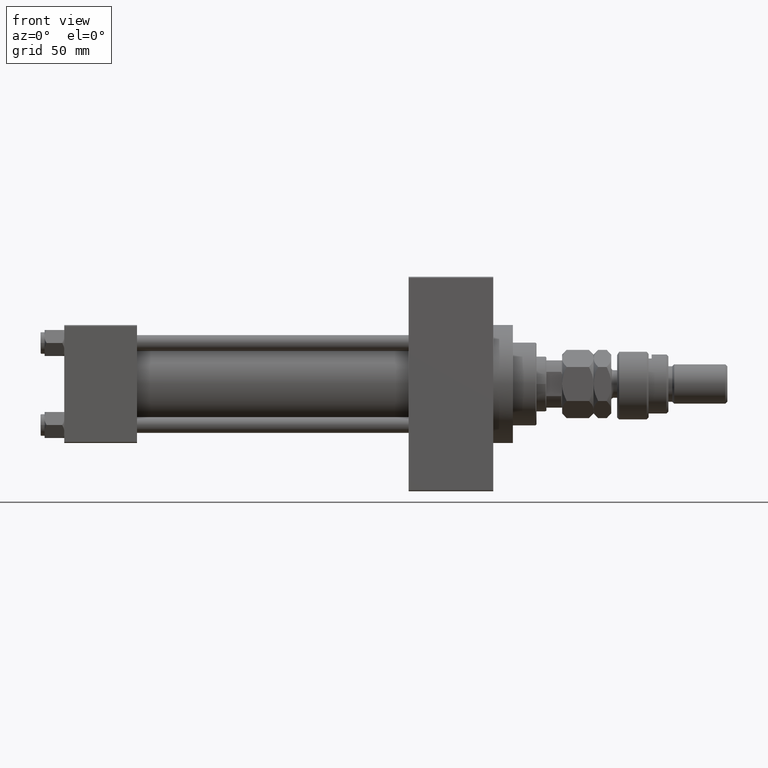
[diagram: clean part render]
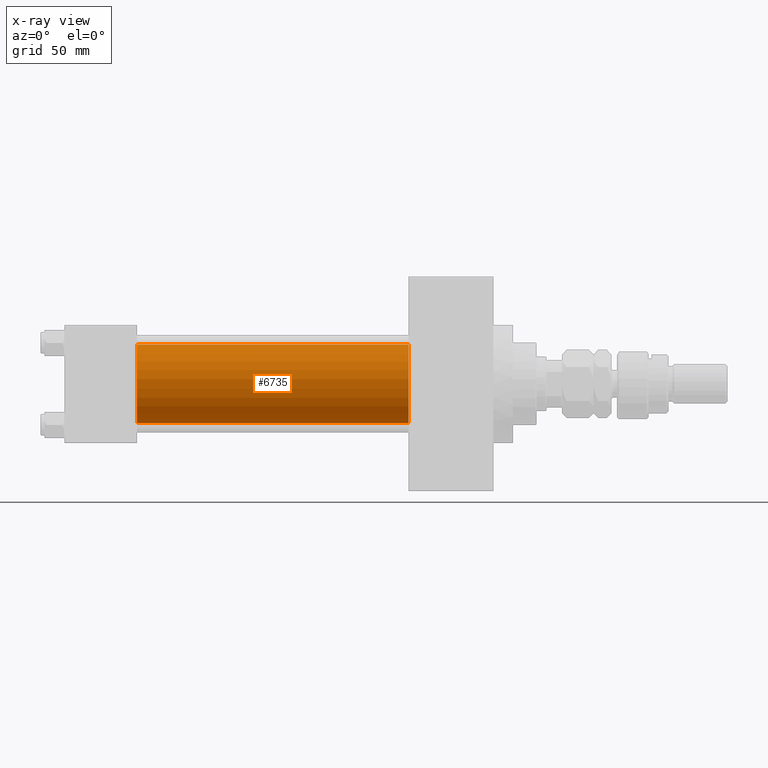
[diagram: x-ray — body ghosted, one internal face saturated and labeled with its STEP entity id]
A machine part, front view, then the same camera in x-ray: the body is ghosted and one INTERNAL B-rep face — a face not visible from any outside direction — is saturated and labeled: STEP entity #6735.
In plain terms, the highlighted cylindrical surface (partial cylindrical patch) has radius 20 mm, axis along (-1, -0, -0).
Its self-contained STEP definition (entity closure, byte-faithful):
#6 = CIRCLE ( 'NONE', #18779, 20.00000000000000000 ) ;
#2251 = CARTESIAN_POINT ( 'NONE',  ( 37.00000000000000000, -2.602085213965210642E-15, 20.00000000000000000 ) ) ;
#2711 = LINE ( 'NONE', #39296, #31422 ) ;
#2971 = DIRECTION ( 'NONE',  ( -1.000000000000000000, -0.000000000000000000, -0.000000000000000000 ) ) ;
#4632 = CARTESIAN_POINT ( 'NONE',  ( 37.00000000000000000, -2.602085213965210642E-15, 0.000000000000000000 ) ) ;
#4747 = CARTESIAN_POINT ( 'NONE',  ( 37.00000000000000000, -1.527916156705042519E-16, -20.00000000000000000 ) ) ;
#6735 = ADVANCED_FACE ( 'NONE', ( #15343 ), #10320, .F. ) ;
#7047 = ORIENTED_EDGE ( 'NONE', *, *, #8586, .F. ) ;
#8447 = DIRECTION ( 'NONE',  ( 1.000000000000000000, 0.000000000000000000, 0.000000000000000000 ) ) ;
#8586 = EDGE_CURVE ( 'NONE', #14892, #24700, #35362, .T. ) ;
#10060 = CARTESIAN_POINT ( 'NONE',  ( 175.0000000000000284, -2.602085213965210642E-15, 0.000000000000000000 ) ) ;
#10320 = CYLINDRICAL_SURFACE ( 'NONE', #44933, 20.00000000000000000 ) ;
#12038 = DIRECTION ( 'NONE',  ( -1.000000000000000000, -0.000000000000000000, -0.000000000000000000 ) ) ;
#12861 = VECTOR ( 'NONE', #12038, 1000.000000000000000 ) ;
#14892 = VERTEX_POINT ( 'NONE', #39076 ) ;
#15115 = VERTEX_POINT ( 'NONE', #22074 ) ;
#15343 = FACE_OUTER_BOUND ( 'NONE', #40749, .T. ) ;
#15531 = ORIENTED_EDGE ( 'NONE', *, *, #20900, .F. ) ;
#16665 = DIRECTION ( 'NONE',  ( 0.000000000000000000, 0.000000000000000000, -1.000000000000000000 ) ) ;
#16791 = VERTEX_POINT ( 'NONE', #4747 ) ;
#18779 = AXIS2_PLACEMENT_3D ( 'NONE', #29897, #8447, #16665 ) ;
#20900 = EDGE_CURVE ( 'NONE', #24700, #16791, #30955, .T. ) ;
#22074 = CARTESIAN_POINT ( 'NONE',  ( 175.0000000000000284, -1.527916156705042519E-16, -20.00000000000000000 ) ) ;
#24700 = VERTEX_POINT ( 'NONE', #2251 ) ;
#26742 = DIRECTION ( 'NONE',  ( -1.000000000000000000, -0.000000000000000000, -0.000000000000000000 ) ) ;
#29897 = CARTESIAN_POINT ( 'NONE',  ( 175.0000000000000284, -2.602085213965210642E-15, 0.000000000000000000 ) ) ;
#30955 = CIRCLE ( 'NONE', #41120, 20.00000000000000000 ) ;
#31422 = VECTOR ( 'NONE', #2971, 1000.000000000000000 ) ;
#35362 = LINE ( 'NONE', #47559, #12861 ) ;
#38930 = DIRECTION ( 'NONE',  ( 0.000000000000000000, 0.000000000000000000, 1.000000000000000000 ) ) ;
#39076 = CARTESIAN_POINT ( 'NONE',  ( 175.0000000000000284, -2.602085213965210642E-15, 20.00000000000000000 ) ) ;
#39296 = CARTESIAN_POINT ( 'NONE',  ( 175.0000000000000284, -1.527916156705042519E-16, -20.00000000000000000 ) ) ;
#40749 = EDGE_LOOP ( 'NONE', ( #46887, #47388, #15531, #7047 ) ) ;
#41120 = AXIS2_PLACEMENT_3D ( 'NONE', #4632, #48925, #48401 ) ;
#44933 = AXIS2_PLACEMENT_3D ( 'NONE', #10060, #26742, #38930 ) ;
#46858 = EDGE_CURVE ( 'NONE', #14892, #15115, #6, .T. ) ;
#46887 = ORIENTED_EDGE ( 'NONE', *, *, #46858, .T. ) ;
#47388 = ORIENTED_EDGE ( 'NONE', *, *, #49817, .T. ) ;
#47559 = CARTESIAN_POINT ( 'NONE',  ( 175.0000000000000284, -2.602085213965210642E-15, 20.00000000000000000 ) ) ;
#48401 = DIRECTION ( 'NONE',  ( 0.000000000000000000, 0.000000000000000000, -1.000000000000000000 ) ) ;
#48925 = DIRECTION ( 'NONE',  ( 1.000000000000000000, 0.000000000000000000, 0.000000000000000000 ) ) ;
#49817 = EDGE_CURVE ( 'NONE', #15115, #16791, #2711, .T. ) ;